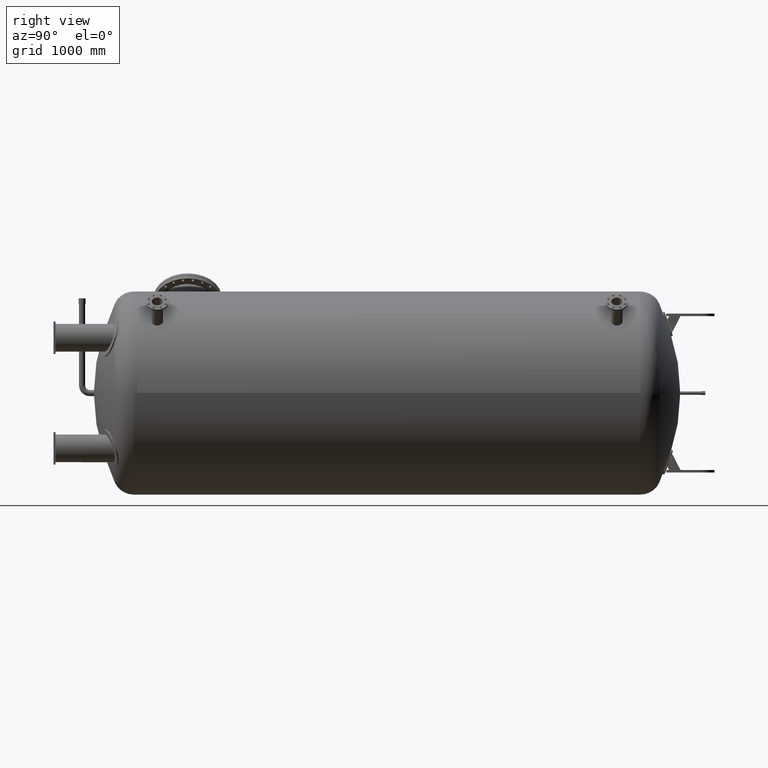
[diagram: clean part render]
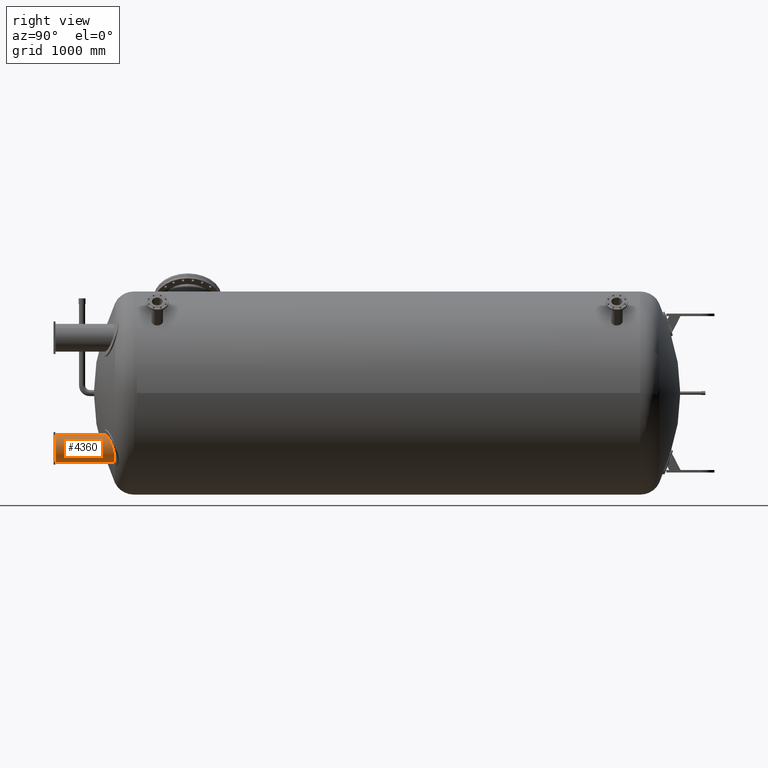
[diagram: same view with one face highlighted and labeled with its STEP entity id]
A machine part, right view. The second image highlights one B-rep face of the part: STEP entity #4360.
In plain terms, the highlighted cylindrical surface (bore or boss wall) has radius 136.5 mm, axis along (0, 1, -0).
Its self-contained STEP definition (entity closure, byte-faithful):
#231=B_SPLINE_CURVE_WITH_KNOTS('',3,(#9189,#9190,#9191,#9192,#9193,#9194,
#9195,#9196,#9197,#9198,#9199,#9200,#9201,#9202,#9203,#9204,#9205,#9206,
#9207,#9208,#9209,#9210,#9211,#9212,#9213,#9214,#9215,#9216,#9217,#9218,
#9219,#9220,#9221,#9222,#9223,#9224,#9225,#9226,#9227,#9228,#9229,#9230,
#9231,#9232,#9233,#9234,#9235,#9236,#9237,#9238,#9239,#9240,#9241,#9242,
#9243,#9244,#9245,#9246,#9247),.UNSPECIFIED.,.F.,.F.,(4,2,2,2,2,2,2,2,2,
2,2,2,2,2,3,2,2,2,2,2,2,2,2,2,2,2,2,2,4),(-35.5330385570597,-35.1574577109065,
-32.5958898753137,-29.796762167526,-26.9976344597383,-24.1985067519506,
-21.3993790441628,-18.609957067558,-15.8205350909531,-13.0311131143483,
-10.2416911377435,-7.68126835330759,-5.12084556887173,-2.56042278443587,
0.,2.56042278443586,5.12084556887173,7.68126835330759,10.2416911377435,
13.0311131143483,15.8205350909532,18.609957067558,21.3993790441628,24.1985067519506,
26.9976344597383,29.796762167526,32.5958898753137,35.1574577109065,35.5330385560682),
 .UNSPECIFIED.);
#232=B_SPLINE_CURVE_WITH_KNOTS('',3,(#9249,#9250,#9251,#9252,#9253,#9254,
#9255,#9256),.UNSPECIFIED.,.F.,.F.,(4,2,2,4),(-7.66215053250013,-6.34178964723505,
-4.4032307434711,-0.00407444906757401),.UNSPECIFIED.);
#233=B_SPLINE_CURVE_WITH_KNOTS('',3,(#9260,#9261,#9262,#9263,#9264,#9265,
#9266,#9267,#9268,#9269),.UNSPECIFIED.,.F.,.F.,(4,2,2,2,4),(-15.3187693338895,
-11.1148400811983,-9.09296880027719,-7.70894095131781,-7.66215053250013),
 .UNSPECIFIED.);
#648=FACE_OUTER_BOUND('',#911,.T.);
#911=EDGE_LOOP('',(#3252,#3253,#3254,#3255,#3256,#3257));
#1281=LINE('',#9258,#1509);
#1509=VECTOR('',#5823,136.5);
#1735=CIRCLE('',#5095,136.5);
#2079=VERTEX_POINT('',#9187);
#2080=VERTEX_POINT('',#9188);
#2081=VERTEX_POINT('',#9248);
#2082=VERTEX_POINT('',#9257);
#2520=EDGE_CURVE('',#2079,#2080,#231,.T.);
#2521=EDGE_CURVE('',#2081,#2079,#232,.T.);
#2522=EDGE_CURVE('',#2081,#2082,#1281,.T.);
#2523=EDGE_CURVE('',#2082,#2082,#1735,.T.);
#2524=EDGE_CURVE('',#2080,#2081,#233,.T.);
#3252=ORIENTED_EDGE('',*,*,#2520,.F.);
#3253=ORIENTED_EDGE('',*,*,#2521,.F.);
#3254=ORIENTED_EDGE('',*,*,#2522,.T.);
#3255=ORIENTED_EDGE('',*,*,#2523,.T.);
#3256=ORIENTED_EDGE('',*,*,#2522,.F.);
#3257=ORIENTED_EDGE('',*,*,#2524,.F.);
#4128=CYLINDRICAL_SURFACE('',#5094,136.5);
#4360=ADVANCED_FACE('',(#648),#4128,.T.);
#5094=AXIS2_PLACEMENT_3D('',#9186,#5821,#5822);
#5095=AXIS2_PLACEMENT_3D('',#9259,#5824,#5825);
#5821=DIRECTION('center_axis',(0.,-1.,0.));
#5822=DIRECTION('ref_axis',(1.,0.,0.));
#5823=DIRECTION('',(0.,1.,0.));
#5824=DIRECTION('center_axis',(0.,-1.,0.));
#5825=DIRECTION('ref_axis',(1.,0.,0.));
#9186=CARTESIAN_POINT('Origin',(-770.,802.451,0.));
#9187=CARTESIAN_POINT('',(-886.02319009951,228.316922171653,-71.9087571797276));
#9188=CARTESIAN_POINT('',(-886.02319009951,228.316922171653,71.9087571797276));
#9189=CARTESIAN_POINT('Ctrl Pts',(-886.02319009951,228.316922171653,-71.9087571797276));
#9190=CARTESIAN_POINT('Ctrl Pts',(-885.345998219488,228.604427020943,-73.0013913081856));
#9191=CARTESIAN_POINT('Ctrl Pts',(-884.655158465006,228.897657743588,-74.0815660016126));
#9192=CARTESIAN_POINT('Ctrl Pts',(-879.152048878488,231.232895364432,-82.426195861335));
#9193=CARTESIAN_POINT('Ctrl Pts',(-873.744883249564,233.523858567045,-89.0861962419811));
#9194=CARTESIAN_POINT('Ctrl Pts',(-861.817800483657,238.56637903832,-101.399535110459));
#9195=CARTESIAN_POINT('Ctrl Pts',(-854.795222829762,241.529601692696,-107.365556606707));
#9196=CARTESIAN_POINT('Ctrl Pts',(-839.555577695806,247.941614939405,-117.811774350733));
#9197=CARTESIAN_POINT('Ctrl Pts',(-831.339104203957,251.390052636698,-122.293053720161));
#9198=CARTESIAN_POINT('Ctrl Pts',(-814.252579016876,258.539173214873,-129.459595589819));
#9199=CARTESIAN_POINT('Ctrl Pts',(-805.370913427906,262.244653701411,-132.149879599984));
#9200=CARTESIAN_POINT('Ctrl Pts',(-787.555917273213,269.654343196921,-135.670490409347));
#9201=CARTESIAN_POINT('Ctrl Pts',(-778.62244438729,273.358598289727,-136.5));
#9202=CARTESIAN_POINT('Ctrl Pts',(-761.407453186561,280.476536967006,-136.5));
#9203=CARTESIAN_POINT('Ctrl Pts',(-752.496588502334,284.150506407399,-135.676155808194));
#9204=CARTESIAN_POINT('Ctrl Pts',(-734.7126343695,291.460978079266,-132.171065290335));
#9205=CARTESIAN_POINT('Ctrl Pts',(-725.83943762073,295.097553007926,-129.490515036807));
#9206=CARTESIAN_POINT('Ctrl Pts',(-708.760212748799,302.078149342226,-122.342299143111));
#9207=CARTESIAN_POINT('Ctrl Pts',(-700.542397826491,305.427058395624,-117.869445097993));
#9208=CARTESIAN_POINT('Ctrl Pts',(-685.29646130296,311.625655930926,-107.437773262829));
#9209=CARTESIAN_POINT('Ctrl Pts',(-678.26899503368,314.475176283958,-101.477897836145));
#9210=CARTESIAN_POINT('Ctrl Pts',(-666.316410799141,319.313142908225,-89.1596540117647));
#9211=CARTESIAN_POINT('Ctrl Pts',(-660.892464319734,321.504209542169,-82.4869005666945));
#9212=CARTESIAN_POINT('Ctrl Pts',(-651.268768891083,325.38636987687,-67.9075685735782));
#9213=CARTESIAN_POINT('Ctrl Pts',(-647.068908176548,327.077607722678,-60.0011021843597));
#9214=CARTESIAN_POINT('Ctrl Pts',(-640.292685300348,329.803973695736,-43.4534073812818));
#9215=CARTESIAN_POINT('Ctrl Pts',(-637.710582720514,330.84148062723,-34.7972819543007));
#9216=CARTESIAN_POINT('Ctrl Pts',(-634.313843078755,332.205937177433,-17.3380384320588));
#9217=CARTESIAN_POINT('Ctrl Pts',(-633.5,332.532589149862,-8.53474261478624));
#9218=CARTESIAN_POINT('Ctrl Pts',(-633.5,332.532589149862,0.));
#9219=CARTESIAN_POINT('Ctrl Pts',(-633.5,332.532589149862,8.53474261478621));
#9220=CARTESIAN_POINT('Ctrl Pts',(-634.313843078755,332.205937177433,17.3380384320588));
#9221=CARTESIAN_POINT('Ctrl Pts',(-637.710582720514,330.84148062723,34.7972819543007));
#9222=CARTESIAN_POINT('Ctrl Pts',(-640.292685300348,329.803973695736,43.4534073812818));
#9223=CARTESIAN_POINT('Ctrl Pts',(-647.068908176548,327.077607722678,60.0011021843597));
#9224=CARTESIAN_POINT('Ctrl Pts',(-651.268768891083,325.38636987687,67.9075685735783));
#9225=CARTESIAN_POINT('Ctrl Pts',(-660.892464319734,321.504209542169,82.4869005666946));
#9226=CARTESIAN_POINT('Ctrl Pts',(-666.316410799141,319.313142908225,89.1596540117647));
#9227=CARTESIAN_POINT('Ctrl Pts',(-678.26899503368,314.475176283958,101.477897836145));
#9228=CARTESIAN_POINT('Ctrl Pts',(-685.29646130296,311.625655930926,107.437773262829));
#9229=CARTESIAN_POINT('Ctrl Pts',(-700.542397826491,305.427058395624,117.869445097993));
#9230=CARTESIAN_POINT('Ctrl Pts',(-708.760212748799,302.078149342226,122.342299143111));
#9231=CARTESIAN_POINT('Ctrl Pts',(-725.83943762073,295.097553007927,129.490515036807));
#9232=CARTESIAN_POINT('Ctrl Pts',(-734.7126343695,291.460978079266,132.171065290335));
#9233=CARTESIAN_POINT('Ctrl Pts',(-752.496588502334,284.150506407399,135.676155808194));
#9234=CARTESIAN_POINT('Ctrl Pts',(-761.407453186561,280.476536967006,136.5));
#9235=CARTESIAN_POINT('Ctrl Pts',(-778.62244438729,273.358598289727,136.5));
#9236=CARTESIAN_POINT('Ctrl Pts',(-787.555917273213,269.654343196921,135.670490409347));
#9237=CARTESIAN_POINT('Ctrl Pts',(-805.370913427906,262.244653701411,132.149879599984));
#9238=CARTESIAN_POINT('Ctrl Pts',(-814.252579016876,258.539173214873,129.459595589819));
#9239=CARTESIAN_POINT('Ctrl Pts',(-831.339104203957,251.390052636698,122.293053720161));
#9240=CARTESIAN_POINT('Ctrl Pts',(-839.555577695807,247.941614939405,117.811774350733));
#9241=CARTESIAN_POINT('Ctrl Pts',(-854.795222829762,241.529601692696,107.365556606707));
#9242=CARTESIAN_POINT('Ctrl Pts',(-861.817800483657,238.56637903832,101.399535110459));
#9243=CARTESIAN_POINT('Ctrl Pts',(-873.744883249564,233.523858567045,89.0861962419812));
#9244=CARTESIAN_POINT('Ctrl Pts',(-879.152048878488,231.232895364432,82.4261958613351));
#9245=CARTESIAN_POINT('Ctrl Pts',(-884.655158463148,228.897657744377,74.0815660044295));
#9246=CARTESIAN_POINT('Ctrl Pts',(-885.345998218008,228.604427021572,73.0013913105739));
#9247=CARTESIAN_POINT('Ctrl Pts',(-886.02319009951,228.316922171653,71.9087571797276));
#9248=CARTESIAN_POINT('',(-906.5,218.692288755158,-2.00155561627448E-14));
#9249=CARTESIAN_POINT('Ctrl Pts',(-906.5,218.692288755158,-1.66533453693773E-14));
#9250=CARTESIAN_POINT('Ctrl Pts',(-906.5,218.692288755158,-4.40449465487683));
#9251=CARTESIAN_POINT('Ctrl Pts',(-906.286946803372,218.802787996695,-8.80194422425717));
#9252=CARTESIAN_POINT('Ctrl Pts',(-905.23836194185,219.341856005583,-19.6101984773626));
#9253=CARTESIAN_POINT('Ctrl Pts',(-904.16176635843,219.893841686447,-25.9638170767081));
#9254=CARTESIAN_POINT('Ctrl Pts',(-899.207791233524,222.365483875743,-46.3682854549206));
#9255=CARTESIAN_POINT('Ctrl Pts',(-893.561854787827,225.116348273758,-59.7452883543243));
#9256=CARTESIAN_POINT('Ctrl Pts',(-886.02319009951,228.316922171653,-71.9087571797276));
#9257=CARTESIAN_POINT('',(-906.5,802.451,1.67164288083614E-14));
#9258=CARTESIAN_POINT('',(-906.5,802.451,-1.67164288083614E-14));
#9259=CARTESIAN_POINT('Origin',(-770.,802.451,0.));
#9260=CARTESIAN_POINT('Ctrl Pts',(-886.02319009951,228.316922171653,71.9087571797276));
#9261=CARTESIAN_POINT('Ctrl Pts',(-893.228059494554,225.258062562304,60.2838596811652));
#9262=CARTESIAN_POINT('Ctrl Pts',(-898.705903560645,222.607811189469,47.5471403446249));
#9263=CARTESIAN_POINT('Ctrl Pts',(-903.850340251374,220.052349108758,27.5887490236432));
#9264=CARTESIAN_POINT('Ctrl Pts',(-905.046485372984,219.440096132556,20.9777349903561));
#9265=CARTESIAN_POINT('Ctrl Pts',(-906.233409976379,218.830536452473,9.69364535541919));
#9266=CARTESIAN_POINT('Ctrl Pts',(-906.483356146232,218.700895826889,5.0856651445624));
#9267=CARTESIAN_POINT('Ctrl Pts',(-906.499732281114,218.692427202717,0.312178273004261));
#9268=CARTESIAN_POINT('Ctrl Pts',(-906.5,218.692288755158,0.15608471280978));
#9269=CARTESIAN_POINT('Ctrl Pts',(-906.5,218.692288755158,-1.76594849854439E-14));